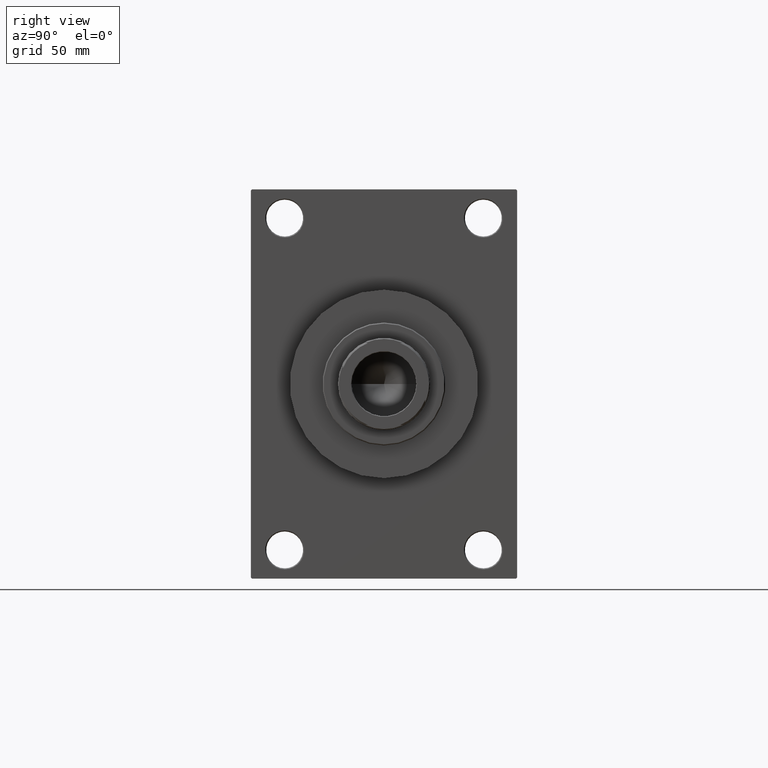
[diagram: clean part render]
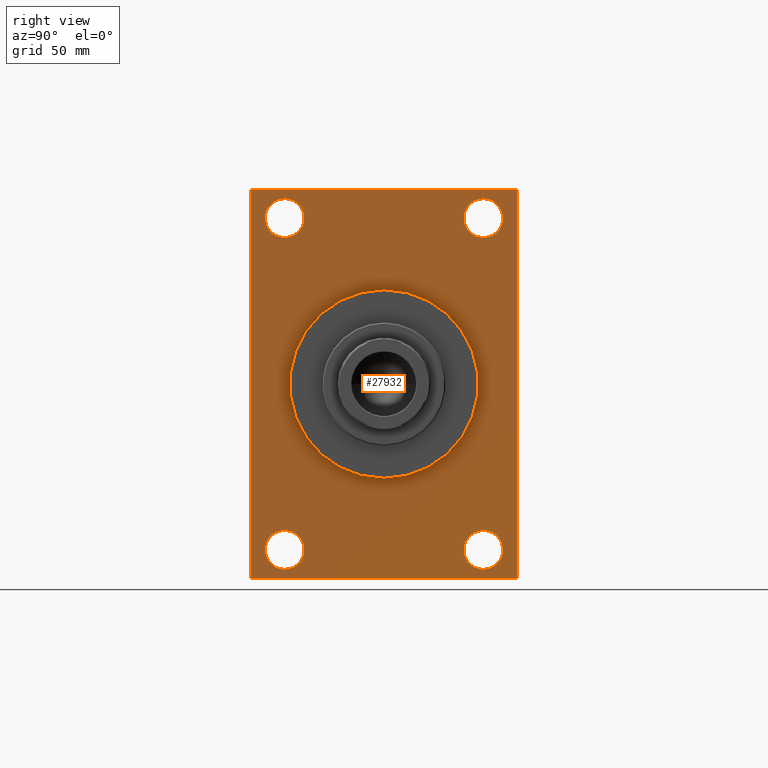
[diagram: same view with one face highlighted and labeled with its STEP entity id]
A machine part, right view. The second image highlights one B-rep face of the part: STEP entity #27932.
In plain terms, the highlighted planar face has unit normal (-1, 0, 0).
Its self-contained STEP definition (entity closure, byte-faithful):
#168 = CIRCLE ( 'NONE', #37882, 9.499999999999980460 ) ;
#179 = EDGE_CURVE ( 'NONE', #18593, #24137, #26979, .T. ) ;
#194 = CARTESIAN_POINT ( 'NONE',  ( 196.0000000000000000, 48.50000000000000711, 81.00000000000000000 ) ) ;
#411 = LINE ( 'NONE', #28702, #47473 ) ;
#571 = ORIENTED_EDGE ( 'NONE', *, *, #10789, .T. ) ;
#816 = CARTESIAN_POINT ( 'NONE',  ( 196.0000000000000000, 64.99999999999998579, -94.49999999999997158 ) ) ;
#888 = CIRCLE ( 'NONE', #46321, 9.499999999999980460 ) ;
#1116 = CIRCLE ( 'NONE', #28087, 9.499999999999980460 ) ;
#1724 = CARTESIAN_POINT ( 'NONE',  ( 196.0000000000000000, 64.99999999999997158, 94.49999999999994316 ) ) ;
#1842 = DIRECTION ( 'NONE',  ( 0.000000000000000000, 0.000000000000000000, 1.000000000000000000 ) ) ;
#2315 = LINE ( 'NONE', #6411, #46311 ) ;
#2896 = CARTESIAN_POINT ( 'NONE',  ( 196.0000000000000000, 5.633375276077824704E-15, -46.00000000000000000 ) ) ;
#2927 = FACE_BOUND ( 'NONE', #45924, .T. ) ;
#3675 = EDGE_CURVE ( 'NONE', #27006, #25374, #2315, .T. ) ;
#4094 = EDGE_CURVE ( 'NONE', #35009, #8885, #45066, .T. ) ;
#4253 = CARTESIAN_POINT ( 'NONE',  ( 196.0000000000000000, -65.00000000000001421, 94.49999999999994316 ) ) ;
#4983 = DIRECTION ( 'NONE',  ( 1.000000000000000000, 0.000000000000000000, 0.000000000000000000 ) ) ;
#5609 = VERTEX_POINT ( 'NONE', #30505 ) ;
#6411 = CARTESIAN_POINT ( 'NONE',  ( 196.0000000000000000, 64.99999999999997158, 94.99999999999997158 ) ) ;
#6863 = ORIENTED_EDGE ( 'NONE', *, *, #14703, .T. ) ;
#6892 = DIRECTION ( 'NONE',  ( 0.000000000000000000, 0.000000000000000000, -1.000000000000000000 ) ) ;
#7816 = ORIENTED_EDGE ( 'NONE', *, *, #8344, .T. ) ;
#8288 = EDGE_CURVE ( 'NONE', #32932, #5609, #888, .T. ) ;
#8308 = CARTESIAN_POINT ( 'NONE',  ( 196.0000000000000000, 48.50000000000000711, -81.00000000000001421 ) ) ;
#8344 = EDGE_CURVE ( 'NONE', #37363, #15379, #28614, .T. ) ;
#8885 = VERTEX_POINT ( 'NONE', #35174 ) ;
#9229 = EDGE_CURVE ( 'NONE', #5609, #32932, #168, .T. ) ;
#9249 = LINE ( 'NONE', #34550, #38045 ) ;
#9380 = EDGE_CURVE ( 'NONE', #12184, #26647, #16300, .T. ) ;
#10167 = DIRECTION ( 'NONE',  ( -1.000000000000000000, 0.000000000000000000, -0.000000000000000000 ) ) ;
#10301 = VECTOR ( 'NONE', #42839, 1000.000000000000114 ) ;
#10544 = CARTESIAN_POINT ( 'NONE',  ( 196.0000000000000000, 64.99999999999997158, 94.99999999999997158 ) ) ;
#10765 = CARTESIAN_POINT ( 'NONE',  ( 196.0000000000000000, 64.99999999999998579, -94.49999999999997158 ) ) ;
#10789 = EDGE_CURVE ( 'NONE', #32855, #27642, #35971, .T. ) ;
#11018 = VECTOR ( 'NONE', #17411, 1000.000000000000000 ) ;
#11274 = CIRCLE ( 'NONE', #17440, 9.499999999999980460 ) ;
#11285 = DIRECTION ( 'NONE',  ( 0.000000000000000000, 0.000000000000000000, 1.000000000000000000 ) ) ;
#11691 = DIRECTION ( 'NONE',  ( -1.000000000000000000, 0.000000000000000000, -0.000000000000000000 ) ) ;
#11966 = AXIS2_PLACEMENT_3D ( 'NONE', #12191, #45929, #22806 ) ;
#12092 = EDGE_CURVE ( 'NONE', #27642, #8885, #13428, .T. ) ;
#12184 = VERTEX_POINT ( 'NONE', #17520 ) ;
#12191 = CARTESIAN_POINT ( 'NONE',  ( 196.0000000000000000, -48.50000000000000000, 81.00000000000000000 ) ) ;
#13428 = LINE ( 'NONE', #45724, #10301 ) ;
#13968 = DIRECTION ( 'NONE',  ( 0.000000000000000000, 0.000000000000000000, 1.000000000000000000 ) ) ;
#14500 = EDGE_CURVE ( 'NONE', #35009, #39309, #44467, .T. ) ;
#14703 = EDGE_CURVE ( 'NONE', #38625, #27006, #9249, .T. ) ;
#14894 = DIRECTION ( 'NONE',  ( -1.000000000000000000, 0.000000000000000000, -0.000000000000000000 ) ) ;
#14963 = CIRCLE ( 'NONE', #11966, 9.499999999999980460 ) ;
#15372 = CARTESIAN_POINT ( 'NONE',  ( 196.0000000000000000, 48.50000000000000711, -81.00000000000001421 ) ) ;
#15379 = VERTEX_POINT ( 'NONE', #17721 ) ;
#16093 = ORIENTED_EDGE ( 'NONE', *, *, #3675, .T. ) ;
#16300 = CIRCLE ( 'NONE', #43270, 9.499999999999980460 ) ;
#16663 = VECTOR ( 'NONE', #32702, 1000.000000000000000 ) ;
#17054 = ORIENTED_EDGE ( 'NONE', *, *, #12092, .T. ) ;
#17411 = DIRECTION ( 'NONE',  ( 0.000000000000000000, 0.000000000000000000, -1.000000000000000000 ) ) ;
#17440 = AXIS2_PLACEMENT_3D ( 'NONE', #35083, #31460, #20611 ) ;
#17520 = CARTESIAN_POINT ( 'NONE',  ( 196.0000000000000000, -48.50000000000000000, 90.49999999999998579 ) ) ;
#17721 = CARTESIAN_POINT ( 'NONE',  ( 196.0000000000000000, -48.49999999999999289, -71.50000000000004263 ) ) ;
#17729 = DIRECTION ( 'NONE',  ( 1.000000000000000000, 0.000000000000000000, 0.000000000000000000 ) ) ;
#17797 = EDGE_CURVE ( 'NONE', #26647, #12184, #14963, .T. ) ;
#17828 = AXIS2_PLACEMENT_3D ( 'NONE', #24202, #39396, #35533 ) ;
#18047 = ORIENTED_EDGE ( 'NONE', *, *, #9380, .T. ) ;
#18420 = EDGE_CURVE ( 'NONE', #15379, #37363, #1116, .T. ) ;
#18593 = VERTEX_POINT ( 'NONE', #2896 ) ;
#18853 = CARTESIAN_POINT ( 'NONE',  ( 196.0000000000000000, 64.49999999999992895, -95.00000000000001421 ) ) ;
#18956 = ORIENTED_EDGE ( 'NONE', *, *, #44964, .T. ) ;
#20477 = EDGE_LOOP ( 'NONE', ( #7816, #45615 ) ) ;
#20611 = DIRECTION ( 'NONE',  ( 0.000000000000000000, 0.000000000000000000, 1.000000000000000000 ) ) ;
#20647 = DIRECTION ( 'NONE',  ( -1.000000000000000000, 0.000000000000000000, -0.000000000000000000 ) ) ;
#21237 = FACE_BOUND ( 'NONE', #20477, .T. ) ;
#21557 = EDGE_LOOP ( 'NONE', ( #571, #17054, #30848, #31808, #28436, #6863, #16093, #18956 ) ) ;
#22394 = VECTOR ( 'NONE', #33737, 1000.000000000000000 ) ;
#22806 = DIRECTION ( 'NONE',  ( 0.000000000000000000, 0.000000000000000000, 1.000000000000000000 ) ) ;
#23787 = ORIENTED_EDGE ( 'NONE', *, *, #179, .F. ) ;
#24137 = VERTEX_POINT ( 'NONE', #37114 ) ;
#24202 = CARTESIAN_POINT ( 'NONE',  ( 196.0000000000000000, -48.49999999999999289, -81.00000000000001421 ) ) ;
#25374 = VERTEX_POINT ( 'NONE', #26485 ) ;
#26485 = CARTESIAN_POINT ( 'NONE',  ( 196.0000000000000000, -64.49999999999997158, 94.99999999999997158 ) ) ;
#26563 = DIRECTION ( 'NONE',  ( -1.000000000000000000, 0.000000000000000000, -0.000000000000000000 ) ) ;
#26647 = VERTEX_POINT ( 'NONE', #32411 ) ;
#26979 = CIRCLE ( 'NONE', #40069, 46.00000000000000000 ) ;
#27006 = VERTEX_POINT ( 'NONE', #44404 ) ;
#27308 = EDGE_LOOP ( 'NONE', ( #46825, #28739 ) ) ;
#27408 = CARTESIAN_POINT ( 'NONE',  ( 196.0000000000000000, -48.50000000000000000, 81.00000000000000000 ) ) ;
#27642 = VERTEX_POINT ( 'NONE', #36246 ) ;
#27932 = ADVANCED_FACE ( 'NONE', ( #32093, #21237, #39816, #35955, #2927, #46809 ), #28490, .F. ) ;
#28087 = AXIS2_PLACEMENT_3D ( 'NONE', #44644, #26563, #30626 ) ;
#28436 = ORIENTED_EDGE ( 'NONE', *, *, #41153, .F. ) ;
#28490 = PLANE ( 'NONE',  #38390 ) ;
#28614 = CIRCLE ( 'NONE', #17828, 9.499999999999980460 ) ;
#28702 = CARTESIAN_POINT ( 'NONE',  ( 196.0000000000000000, -65.00000000000001421, 94.49999999999994316 ) ) ;
#28739 = ORIENTED_EDGE ( 'NONE', *, *, #47002, .T. ) ;
#30222 = DIRECTION ( 'NONE',  ( -0.000000000000000000, 0.7071067811865574537, 0.7071067811865376918 ) ) ;
#30505 = CARTESIAN_POINT ( 'NONE',  ( 196.0000000000000000, 48.50000000000000711, -71.50000000000004263 ) ) ;
#30626 = DIRECTION ( 'NONE',  ( 0.000000000000000000, 0.000000000000000000, 1.000000000000000000 ) ) ;
#30848 = ORIENTED_EDGE ( 'NONE', *, *, #4094, .F. ) ;
#31453 = ORIENTED_EDGE ( 'NONE', *, *, #8288, .T. ) ;
#31460 = DIRECTION ( 'NONE',  ( -1.000000000000000000, 0.000000000000000000, -0.000000000000000000 ) ) ;
#31808 = ORIENTED_EDGE ( 'NONE', *, *, #14500, .T. ) ;
#32093 = FACE_BOUND ( 'NONE', #42131, .T. ) ;
#32156 = CIRCLE ( 'NONE', #44484, 46.00000000000000000 ) ;
#32411 = CARTESIAN_POINT ( 'NONE',  ( 196.0000000000000000, -48.50000000000000000, 71.50000000000002842 ) ) ;
#32472 = LINE ( 'NONE', #10544, #16663 ) ;
#32702 = DIRECTION ( 'NONE',  ( 0.000000000000000000, 7.304098846218135653E-17, -1.000000000000000000 ) ) ;
#32855 = VERTEX_POINT ( 'NONE', #4253 ) ;
#32932 = VERTEX_POINT ( 'NONE', #44522 ) ;
#33737 = DIRECTION ( 'NONE',  ( 0.000000000000000000, -1.000000000000000000, -1.067522139062650425E-16 ) ) ;
#34450 = CIRCLE ( 'NONE', #40631, 9.499999999999980460 ) ;
#34550 = CARTESIAN_POINT ( 'NONE',  ( 196.0000000000000000, 64.49999999999994316, 94.99999999999997158 ) ) ;
#34638 = CARTESIAN_POINT ( 'NONE',  ( 196.0000000000000000, 0.000000000000000000, 0.000000000000000000 ) ) ;
#35009 = VERTEX_POINT ( 'NONE', #18853 ) ;
#35083 = CARTESIAN_POINT ( 'NONE',  ( 196.0000000000000000, 48.50000000000000711, 81.00000000000000000 ) ) ;
#35095 = DIRECTION ( 'NONE',  ( 0.000000000000000000, -1.000000000000000000, 0.000000000000000000 ) ) ;
#35174 = CARTESIAN_POINT ( 'NONE',  ( 196.0000000000000000, -64.50000000000007105, -95.00000000000002842 ) ) ;
#35533 = DIRECTION ( 'NONE',  ( 0.000000000000000000, 0.000000000000000000, 1.000000000000000000 ) ) ;
#35696 = DIRECTION ( 'NONE',  ( -0.000000000000000000, -0.7071067811865573427, -0.7071067811865378028 ) ) ;
#35955 = FACE_BOUND ( 'NONE', #27308, .T. ) ;
#35971 = LINE ( 'NONE', #36862, #11018 ) ;
#36246 = CARTESIAN_POINT ( 'NONE',  ( 196.0000000000000000, -65.00000000000001421, -94.50000000000008527 ) ) ;
#36502 = VERTEX_POINT ( 'NONE', #40501 ) ;
#36862 = CARTESIAN_POINT ( 'NONE',  ( 196.0000000000000000, -65.00000000000001421, 94.99999999999997158 ) ) ;
#37114 = CARTESIAN_POINT ( 'NONE',  ( 196.0000000000000000, 0.000000000000000000, 46.00000000000000000 ) ) ;
#37363 = VERTEX_POINT ( 'NONE', #38114 ) ;
#37548 = DIRECTION ( 'NONE',  ( 0.000000000000000000, 0.000000000000000000, -1.000000000000000000 ) ) ;
#37882 = AXIS2_PLACEMENT_3D ( 'NONE', #15372, #44309, #11285 ) ;
#38045 = VECTOR ( 'NONE', #45174, 1000.000000000000114 ) ;
#38114 = CARTESIAN_POINT ( 'NONE',  ( 196.0000000000000000, -48.49999999999999289, -90.50000000000000000 ) ) ;
#38390 = AXIS2_PLACEMENT_3D ( 'NONE', #42472, #10167, #39573 ) ;
#38625 = VERTEX_POINT ( 'NONE', #1724 ) ;
#38926 = VERTEX_POINT ( 'NONE', #40766 ) ;
#39232 = ORIENTED_EDGE ( 'NONE', *, *, #47493, .F. ) ;
#39309 = VERTEX_POINT ( 'NONE', #10765 ) ;
#39396 = DIRECTION ( 'NONE',  ( -1.000000000000000000, 0.000000000000000000, -0.000000000000000000 ) ) ;
#39573 = DIRECTION ( 'NONE',  ( -0.000000000000000000, 0.000000000000000000, 1.000000000000000000 ) ) ;
#39816 = FACE_BOUND ( 'NONE', #42973, .T. ) ;
#40069 = AXIS2_PLACEMENT_3D ( 'NONE', #46676, #17729, #6892 ) ;
#40179 = ORIENTED_EDGE ( 'NONE', *, *, #9229, .T. ) ;
#40374 = VECTOR ( 'NONE', #30222, 999.9999999999998863 ) ;
#40501 = CARTESIAN_POINT ( 'NONE',  ( 196.0000000000000000, 48.50000000000000711, 71.50000000000002842 ) ) ;
#40631 = AXIS2_PLACEMENT_3D ( 'NONE', #194, #14894, #13968 ) ;
#40766 = CARTESIAN_POINT ( 'NONE',  ( 196.0000000000000000, 48.50000000000000711, 90.49999999999998579 ) ) ;
#41153 = EDGE_CURVE ( 'NONE', #38625, #39309, #32472, .T. ) ;
#41380 = EDGE_CURVE ( 'NONE', #36502, #38926, #11274, .T. ) ;
#42131 = EDGE_LOOP ( 'NONE', ( #45959, #18047 ) ) ;
#42472 = CARTESIAN_POINT ( 'NONE',  ( 196.0000000000000000, 0.000000000000000000, 0.000000000000000000 ) ) ;
#42839 = DIRECTION ( 'NONE',  ( 0.000000000000000000, 0.7071067811865474617, -0.7071067811865474617 ) ) ;
#42973 = EDGE_LOOP ( 'NONE', ( #31453, #40179 ) ) ;
#43270 = AXIS2_PLACEMENT_3D ( 'NONE', #27408, #20647, #1842 ) ;
#44309 = DIRECTION ( 'NONE',  ( -1.000000000000000000, 0.000000000000000000, -0.000000000000000000 ) ) ;
#44362 = CARTESIAN_POINT ( 'NONE',  ( 196.0000000000000000, 64.99999999999998579, -95.00000000000001421 ) ) ;
#44404 = CARTESIAN_POINT ( 'NONE',  ( 196.0000000000000000, 64.49999999999994316, 94.99999999999997158 ) ) ;
#44467 = LINE ( 'NONE', #816, #40374 ) ;
#44484 = AXIS2_PLACEMENT_3D ( 'NONE', #34638, #4983, #37548 ) ;
#44522 = CARTESIAN_POINT ( 'NONE',  ( 196.0000000000000000, 48.50000000000000711, -90.50000000000000000 ) ) ;
#44644 = CARTESIAN_POINT ( 'NONE',  ( 196.0000000000000000, -48.49999999999999289, -81.00000000000001421 ) ) ;
#44964 = EDGE_CURVE ( 'NONE', #25374, #32855, #411, .T. ) ;
#45066 = LINE ( 'NONE', #44362, #22394 ) ;
#45174 = DIRECTION ( 'NONE',  ( 0.000000000000000000, -0.7071067811865474617, 0.7071067811865474617 ) ) ;
#45615 = ORIENTED_EDGE ( 'NONE', *, *, #18420, .T. ) ;
#45655 = DIRECTION ( 'NONE',  ( 0.000000000000000000, 0.000000000000000000, 1.000000000000000000 ) ) ;
#45724 = CARTESIAN_POINT ( 'NONE',  ( 196.0000000000000000, -64.50000000000007105, -95.00000000000002842 ) ) ;
#45924 = EDGE_LOOP ( 'NONE', ( #39232, #23787 ) ) ;
#45929 = DIRECTION ( 'NONE',  ( -1.000000000000000000, 0.000000000000000000, -0.000000000000000000 ) ) ;
#45959 = ORIENTED_EDGE ( 'NONE', *, *, #17797, .T. ) ;
#46311 = VECTOR ( 'NONE', #35095, 1000.000000000000000 ) ;
#46321 = AXIS2_PLACEMENT_3D ( 'NONE', #8308, #11691, #45655 ) ;
#46676 = CARTESIAN_POINT ( 'NONE',  ( 196.0000000000000000, 0.000000000000000000, 0.000000000000000000 ) ) ;
#46809 = FACE_OUTER_BOUND ( 'NONE', #21557, .T. ) ;
#46825 = ORIENTED_EDGE ( 'NONE', *, *, #41380, .T. ) ;
#47002 = EDGE_CURVE ( 'NONE', #38926, #36502, #34450, .T. ) ;
#47473 = VECTOR ( 'NONE', #35696, 1000.000000000000000 ) ;
#47493 = EDGE_CURVE ( 'NONE', #24137, #18593, #32156, .T. ) ;